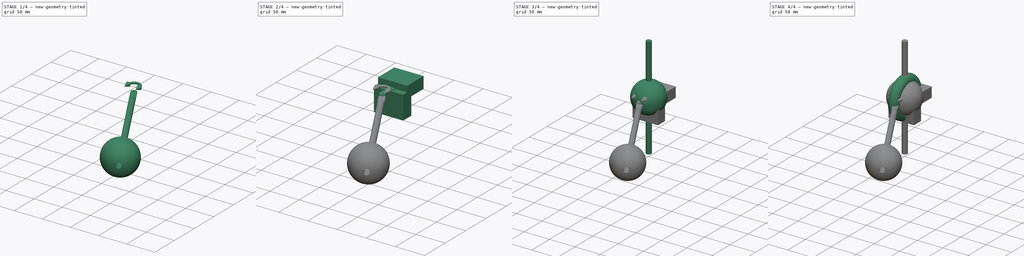
[diagram: build sequence overview — one tinted view per stage of 4, left to right]
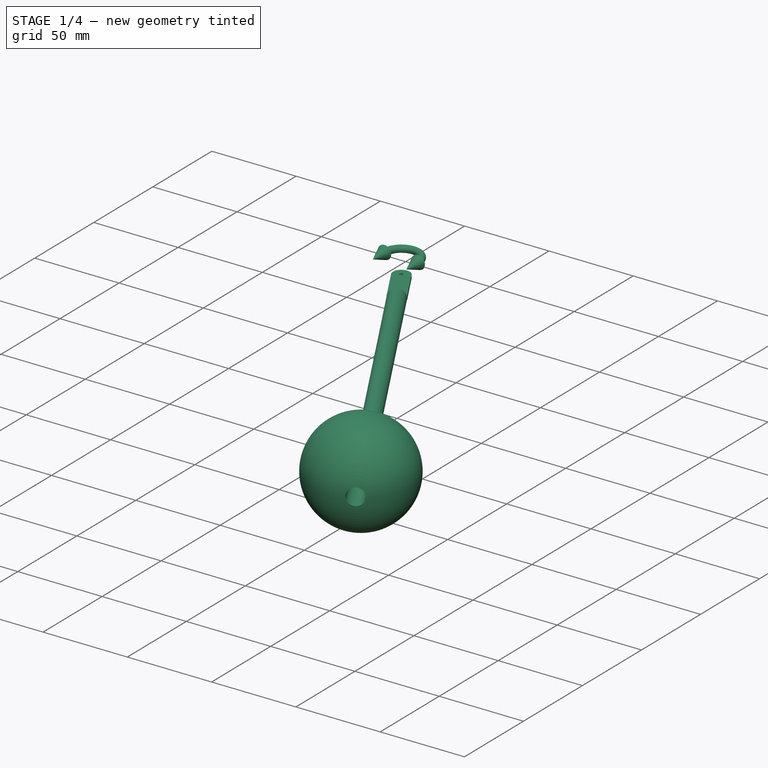
[diagram: stage 1 of 4 — iso view after this stage's code; geometry added in this stage tinted green]
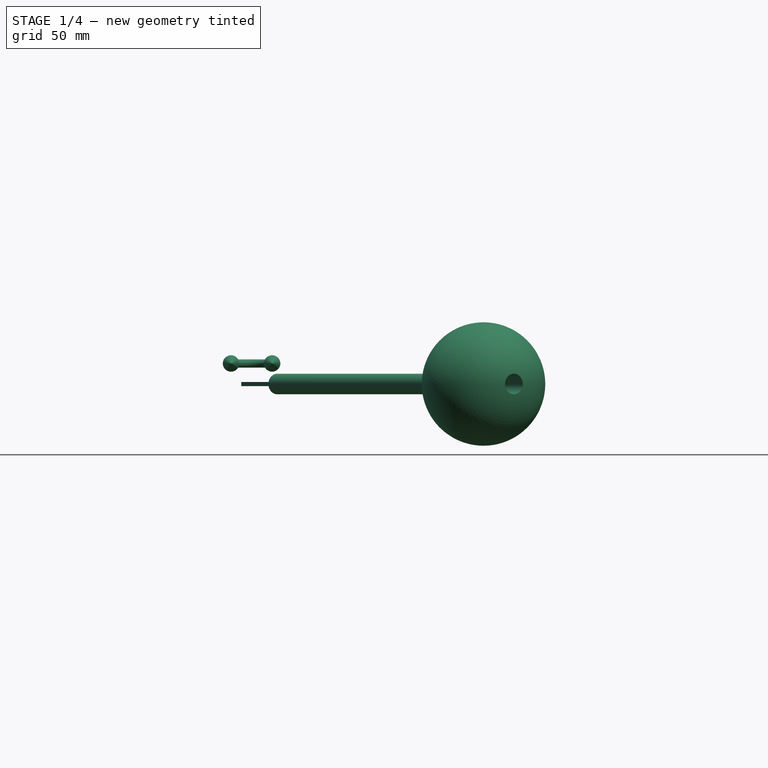
[diagram: stage 1 of 4 — front view after this stage's code; geometry added in this stage tinted green]
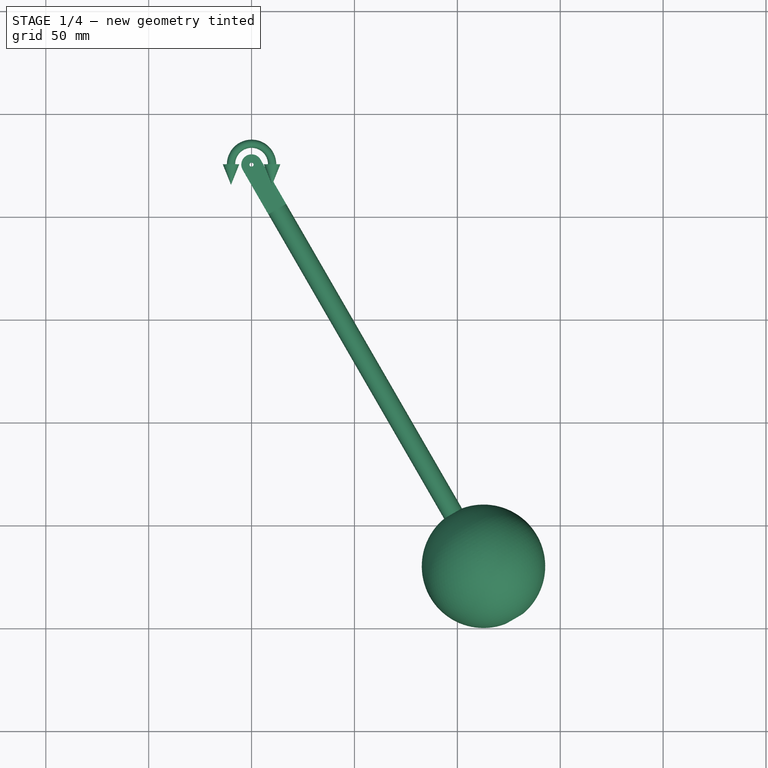
[diagram: stage 1 of 4 — top view after this stage's code; geometry added in this stage tinted green]
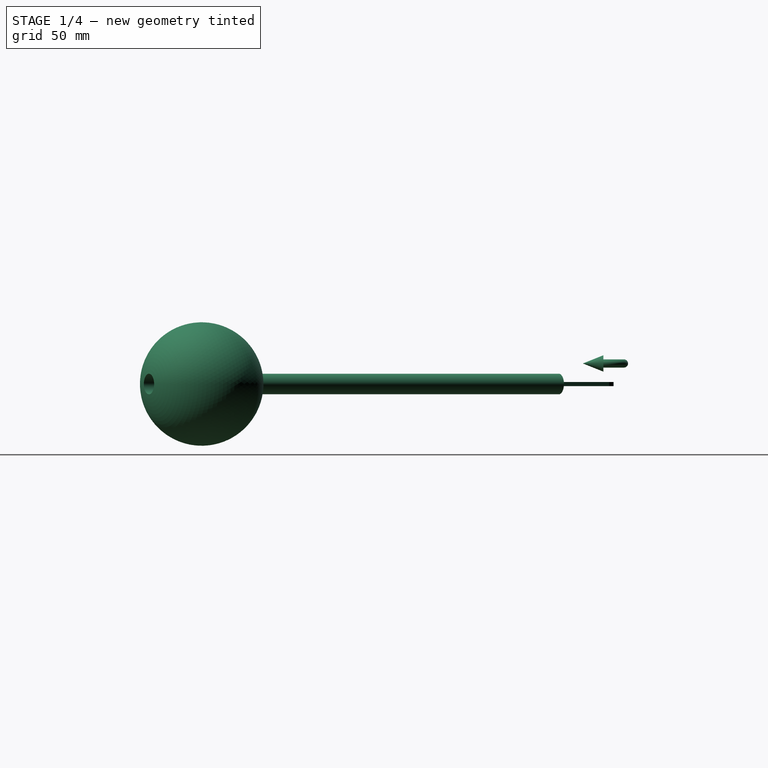
[diagram: stage 1 of 4 — right view after this stage's code; geometry added in this stage tinted green]
FCSTD DOCUMENT  (FreeCAD 0.20R29603 (Git))
Label: NikraDAPBeginnersTutorial3
License: All rights reserved
LicenseURL: http://en.wikipedia.org/wiki/All_rights_reserved
objects: PartDesign::CoordinateSystem×11, Sketcher::SketchObject×6, PartDesign::Body×6, Part::FeaturePython×6, App::Link×5, PartDesign::Pad×4, App::DocumentObjectGroup×3, PartDesign::Revolution×2, App::FeaturePython×1, App::Part×1, App::DocumentObjectGroupPython×1
note: 41 computed .brp shape members not serialized (recipe doc carries the construction recipe); baked Part::Feature solids carry a one-line shape summary decoded from their .brp

FEATURE [Part::FeaturePython] DapBody001  label="DapPendulum"  # WARN: FeaturePython — macro-defined, semantics opaque (R4)
  Mass = 0.971424
  ass4SolidsLabels = PendulumLug | PendulumRod | PendulumWeight
  ass4SolidsNames = PendulumLug | PendulumRod | PendulumWeight
  centreOfGravity = (112.71,-220.219,0)
  momentInertia = 38.1784
  movingBody = true
  phiDot = 0
  pointLabels = PendulumLug-{LugFace}-PendulumRod-{RodTop} | PendulumLug-{LugHole}-{LugHoleRot} | PendulumRod-{PendulumRod} | PendulumRod-{RodBot}-PendulumWeight-{WeightOrigin} | PendulumWeight-{PendulumWeight}
  pointLocals = (5) [(0,0,0),(0,25,1),(2.4869e-14,-100,8.43769e-15),(2.4869e-14,-200,3.06422e-14),(3.90799e-14,-200.42,2.79776e-14)]
  pointNames = PendulumLug-{LugFace}-PendulumRod-{RodTop} | PendulumLug-{LugHole}-{LugHoleRot} | PendulumRod-{PendulumRod} | PendulumRod-{RodBot}-PendulumWeight-{WeightOrigin} | PendulumWeight-{PendulumWeight}
  weightVector = (0,-9529.67,0)
  world = pos=(12.5,-46.6506,-2) rot=(0.258819,-0.965926,0;3.14159rad)
  worldDot = (0,0,0)
FEATURE [Part::FeaturePython] DapMaterial  # WARN: FeaturePython — macro-defined, semantics opaque (R4)
  kgm3ORgcm3 = false
  materialsDensityList = [1000,1000,1e-09,1e-09,8960]
  materialsNameList = Default | Default | None | None | Copper-Generic
  solidsNameList = Ground | GroundLug | PendulumLug | PendulumRod | PendulumWeight
FEATURE [Part::FeaturePython] DapJoint  # Assembly joint (typed FeaturePython)
  Coeff0 = 0
  Coeff1 = 0
  Coeff2 = 0
  Coeff3 = 0
  Coeff4 = 0
  Coeff5 = 0
  FunctType = -1
  JointType = 0 (Fixed)
  Radius = 1
  bodyHEADLabel = DapGround
  bodyHEADName = DapBody
  bodyHEADindex = 0
  bodyTAILLabel = DapPendulum
  bodyTAILName = DapBody001
  bodyTAILindex = 1
  d0 = (0,0,0)
  endDerivativeDriveFunc = 0
  endTimeDriveFunc = 0
  endValueDriveFunc = 0
  fixDof = false
  lengthLink = 1
  mConstraints = 2
  nMovBodies = 2
  phi0 = 0
  pointHEADLabel = GroundLug-{LugHole}-{LugHoleRot}
  pointHEADName = GroundLug-{LugHole}-{LugHoleRot}
  pointHEADindex = 1
  pointTAILLabel = PendulumLug-{LugHole}-{LugHoleRot}
  pointTAILName = PendulumLug-{LugHole}-{LugHoleRot}
  pointTAILindex = 1
  rowEnd = 2
  rowStart = 0
  startTimeDriveFunc = 0
  startValueDriveFunc = 0
  world0 = (0,0,0)
FEATURE [Part::FeaturePython] DapForce  # WARN: FeaturePython — macro-defined, semantics opaque (R4)
  DampingCoeff = 0
  Stiffness = 0
  Value0 = 0
  actuatorType = 0
  bodyHEADLabel = DapGround
  bodyHEADName = DapBody
  bodyHEADindex = 0
  bodyTAILLabel = DapGround
  bodyTAILName = DapBody
  bodyTAILindex = 0
  constForce = (0,0,0)
  constTorque = 0
  forceActuator = 0
  localForce = (0,0,0)
  pointHEADindex = 0
  pointTAILindex = 0
  torqueActuator = 0
  unitLocal = (0,0,0)
  unitWorld = (0,0,0)
  unitWorldDot = (0,0,0)
FEATURE [Part::FeaturePython] DapSolver  # WARN: FeaturePython — macro-defined, semantics opaque (R4)
  BodyCoG = (1) [(112.71,-220.219,0)]
  BodyNames = DapBody001
  DapResultsValid = true
  DeltaTime = 0.01
  Directory = <userpath>/Desktop
  EndTime = 10
  StartTime = 0
FEATURE [App::DocumentObjectGroupPython] DapContainer  # scripted group (container) (typed FeaturePython)
  Group = -> [DapBody,DapBody001,DapMaterial,DapJoint,DapForce,DapSolver]
  activeContainer = true
  gravityVector = (0,-9810,0)
  groundBodyLabel = DapBody
  groundBodyName = DapBody
  movementPlaneNormal = (0,0,1)
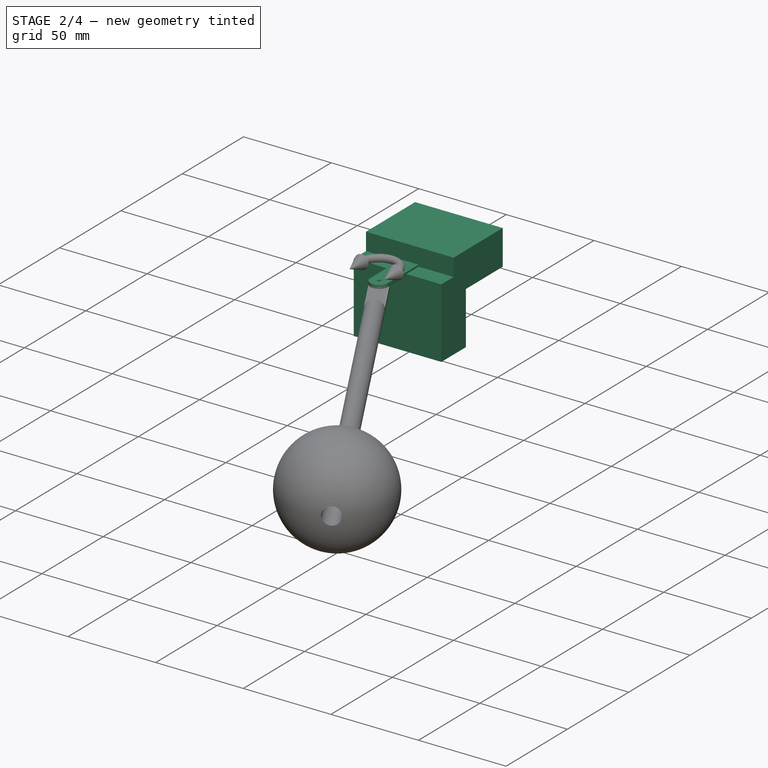
[diagram: stage 2 of 4 — iso view after this stage's code; geometry added in this stage tinted green]
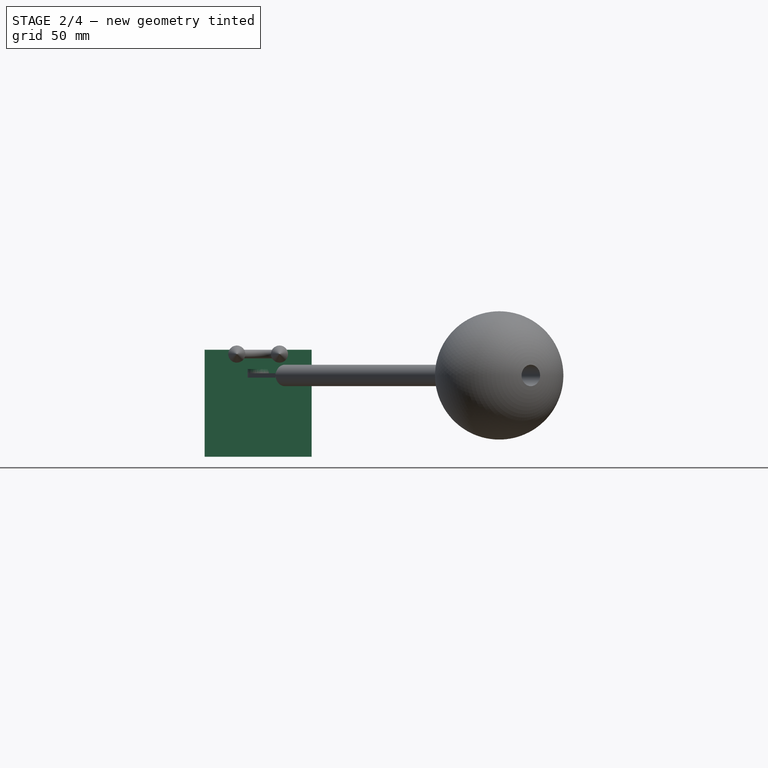
[diagram: stage 2 of 4 — front view after this stage's code; geometry added in this stage tinted green]
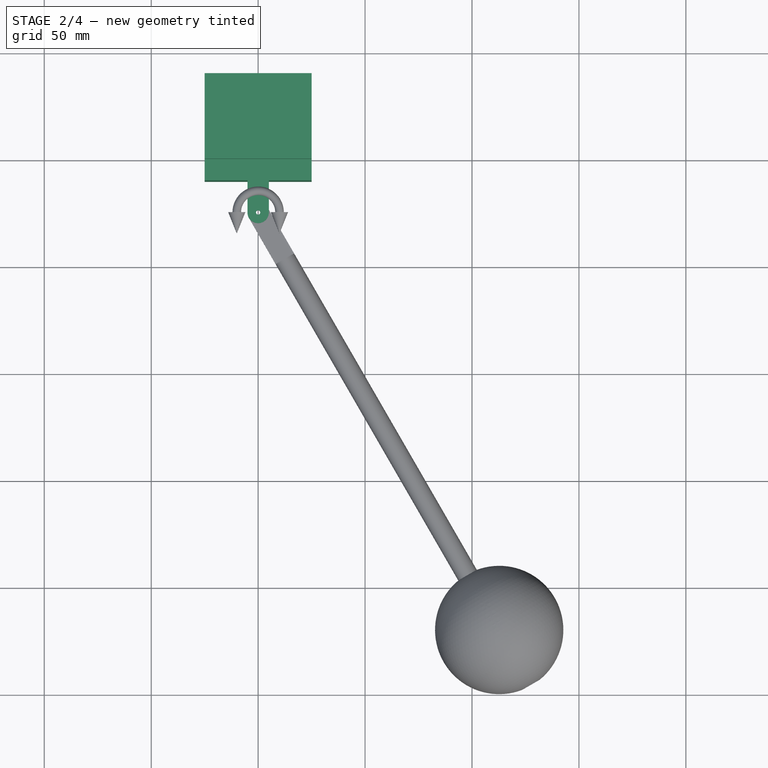
[diagram: stage 2 of 4 — top view after this stage's code; geometry added in this stage tinted green]
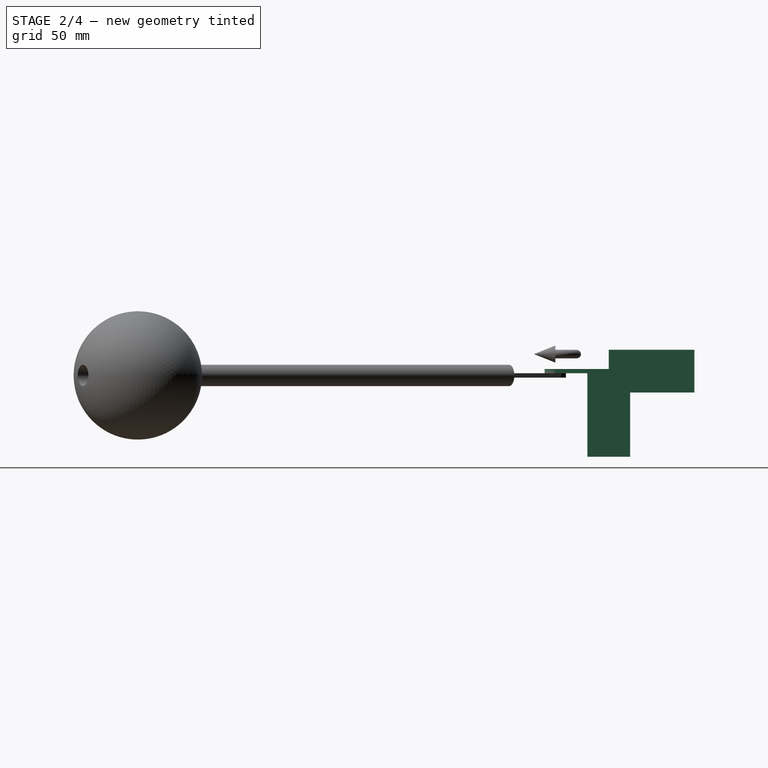
[diagram: stage 2 of 4 — right view after this stage's code; geometry added in this stage tinted green]
FEATURE [Sketcher::SketchObject] Sketch005
  FullyConstrained = true
  MapMode = 5
  Support = -> [XY_Plane005]
  sketch-geometry (4):
    g0: LineSegment StartX=-25 StartY=10 StartZ=0 EndX=25 EndY=10 EndZ=0
    g1: LineSegment StartX=25 StartY=10 StartZ=0 EndX=25 EndY=-10 EndZ=0
    g2: LineSegment StartX=25 StartY=-10 StartZ=0 EndX=-25 EndY=-10 EndZ=0
    g3: LineSegment StartX=-25 StartY=-10 StartZ=0 EndX=-25 EndY=10 EndZ=0
  constraints (11):
    c: Coincident(g0,g1)
    c: Coincident(g1,g2)
    c: Coincident(g2,g3)
    c: Coincident(g3,g0)
    c: Horizontal(g0)
    c: Horizontal(g2)
    c: Vertical(g1)
    c: Vertical(g3)
    c: DistanceY(g2,g0) = 20
    c: DistanceX(g0,g0) = 50
    c: Symmetric(g0,g1,g-1)
FEATURE [PartDesign::Pad] Pad003
  Direction = (0,0,1)
  Length = 40
  Length2 = 10
  Profile = -> Sketch005
  ReferenceAxis = -> Sketch005 [N_Axis]
  Reversed = true
  Type = 0
FEATURE [PartDesign::CoordinateSystem] RodTop
  AttacherType = Attacher::AttachEngine3D
  MapMode = 11
  Placement = pos=(0,0,100) rot=(0,0,1;1.5708rad)
  Support = -> [Pad]
FEATURE [PartDesign::CoordinateSystem] RodBot
  AttacherType = Attacher::AttachEngine3D
  MapMode = 11
  Placement = pos=(0,0,-100) rot=(0,0,1;1.5708rad)
  Support = -> [Pad]
FEATURE [PartDesign::Body] Body001  label="RodBody"
  Group = -> [Sketch001,Pad,RodTop,RodBot]
  Origin = -> Origin001
  Tip = -> Pad
FEATURE [PartDesign::CoordinateSystem] BobSurface
  AttacherType = Attacher::AttachEngine3D
  MapMode = 11
  Placement = pos=(10,-3.6e-15,0) rot=(0.707107,0,0.707107;3.14159rad)
  Support = -> [Revolution001]
FEATURE [PartDesign::Body] Body004  label="BobBody"
  Group = -> [Sketch004,Revolution001,BobSurface]
  Origin = -> Origin004
  Tip = -> Revolution001
FEATURE [PartDesign::CoordinateSystem] GroundFace
  AttacherType = Attacher::AttachEngine3D
  MapMode = 5
  Support = -> [Pad003]
FEATURE [PartDesign::Body] Body005  label="GroundBody"
  Group = -> [Sketch005,Pad003,GroundFace]
  Origin = -> Origin005
  Tip = -> Pad003
FEATURE [PartDesign::CoordinateSystem] LugFace
  AttacherType = Attacher::AttachEngine3D
  MapMode = 5
  Placement = pos=(0,0,0) rot=(1,0,0;1.5708rad)
  Support = -> [Pad004]
FEATURE [PartDesign::CoordinateSystem] LugHole
  AttacherType = Attacher::AttachEngine3D
  MapMode = 11
  Placement = pos=(0,25,1) rot=(0,0,1;1.5708rad)
  Support = -> [Pad004]
FEATURE [PartDesign::CoordinateSystem] LugHoleRot
  AttacherType = Attacher::AttachEngine3D
  AttachmentOffset = pos=(0,0,0) rot=(0,0,1;0.523599rad)
  MapMode = 11
  Placement = pos=(0,25,1) rot=(0,0,1;2.0944rad)
  Support = -> [Pad004]
FEATURE [PartDesign::Body] Body  label="LugBody"
  Group = -> [Sketch,Pad004,LugFace,LugHole,LugHoleRot]
  Origin = -> Origin
  Tip = -> Pad004
FEATURE [PartDesign::CoordinateSystem] MiniRodTop
  AttacherType = Attacher::AttachEngine3D
  MapMode = 11
  Placement = pos=(0,0,5) rot=(0,0,1;1.5708rad)
  Support = -> [Pad005]
FEATURE [PartDesign::CoordinateSystem] MiniRodBot
  AttacherType = Attacher::AttachEngine3D
  MapMode = 11
  Placement = pos=(0,0,-5) rot=(0,0,1;1.5708rad)
  Support = -> [Pad005]
FEATURE [PartDesign::Body] Body006  label="ShortRodBody"
  Group = -> [Sketch006,Pad005,MiniRodTop,MiniRodBot]
  Origin = -> Origin007
  Tip = -> Pad005
FEATURE [PartDesign::CoordinateSystem] WeightOrigin
  AttacherType = Attacher::AttachEngine3D
  AttachmentOffset = pos=(0,0,30) rot=(0,0,1;0rad)
  MapMode = 11
  Placement = pos=(0,0.419601,0) rot=(0.57735,0.57735,0.57735;4.18879rad)
  Support = -> [Revolution]
FEATURE [PartDesign::Body] Body007  label="Weight"
  Group = -> [Sketch007,Revolution,WeightOrigin]
  Origin = -> Origin009
  Tip = -> Revolution
FEATURE [App::DocumentObjectGroup] Parts
  Group = -> [Body001,Body004,Body005,Body,Body006,Body007]
FEATURE [PartDesign::CoordinateSystem] LCS_Origin
  AttacherType = Attacher::AttachEngine3D
  MapMode = 2
  Support = -> [X_Axis010]
FEATURE [App::DocumentObjectGroup] Constraints
FEATURE [App::FeaturePython] Variables  # WARN: FeaturePython — macro-defined, semantics opaque (R4)
  Type = App::PropertyContainer
FEATURE [App::DocumentObjectGroup] Configurations
FEATURE [App::Link] Ground
  AssemblyType = Part::Link
  AttachedBy = #GroundFace
  AttachedTo = Parent Assembly#LCS_Origin
  AttachmentOffset = pos=(0,0,0) rot=(1,0,0;1.5708rad)
  LinkPlacement = pos=(0,0,0) rot=(1,0,0;1.5708rad)
  LinkedObject = -> Body005
  Placement = pos=(0,0,0) rot=(1,0,0;1.5708rad)
  SolverId = Asm4EE
  expr: Placement = LCS_Origin.Placement * AttachmentOffset * GroundFace.Placement ^ -1
FEATURE [App::Link] GroundLug
  AssemblyType = Part::Link
  AttachedBy = #LugFace
  AttachedTo = Ground#GroundFace
  AttachmentOffset = pos=(0,0,0) rot=(1,0,0;3.14159rad)
  LinkPlacement = pos=(0,0,0) rot=(1,0,0;3.14159rad)
  LinkedObject = -> Body
  Placement = pos=(0,0,0) rot=(1,0,0;3.14159rad)
  SolverId = Asm4EE
  expr: Placement = Ground.Placement * GroundFace.Placement * AttachmentOffset * LugFace.Placement ^ -1
FEATURE [App::Link] PendulumLug
  AssemblyType = Part::Link
  AttachedBy = #LugHoleRot
  AttachedTo = GroundLug#LugHole
  AttachmentOffset = pos=(0,0,2) rot=(0,0,1;3.14159rad)
  LinkPlacement = pos=(12.5,-46.6506,-2) rot=(0.258819,-0.965926,0;3.14159rad)
  LinkedObject = -> Body
  Placement = pos=(12.5,-46.6506,-2) rot=(0.258819,-0.965926,0;3.14159rad)
  SolverId = Asm4EE
  expr: Placement = GroundLug.Placement * LugHole.Placement * AttachmentOffset * LugHoleRot.Placement ^ -1
FEATURE [App::Link] PendulumRod
  AssemblyType = Part::Link
  AttachedBy = #RodTop
  AttachedTo = PendulumLug#LugFace
  AttachmentOffset = pos=(0,0,0) rot=(0,-1,0;3.14159rad)
  LinkPlacement = pos=(62.5,-133.253,-2) rot=(0.447214,0.774597,0.447214;4.45971rad)
  LinkedObject = -> Body001
  Placement = pos=(62.5,-133.253,-2) rot=(0.447214,0.774597,0.447214;4.45971rad)
  SolverId = Asm4EE
  expr: Placement = PendulumLug.Placement * LugFace.Placement * AttachmentOffset * RodTop.Placement ^ -1
FEATURE [App::Link] PendulumWeight
  AssemblyType = Part::Link
  AttachedBy = #WeightOrigin
  AttachedTo = PendulumRod#RodBot
  LinkPlacement = pos=(112.71,-220.219,-2) rot=(0.250563,-0.935113,-0.250563;4.64535rad)
  LinkedObject = -> Body007
  Placement = pos=(112.71,-220.219,-2) rot=(0.250563,-0.935113,-0.250563;4.64535rad)
  SolverId = Asm4EE
  expr: Placement = PendulumRod.Placement * RodBot.Placement * AttachmentOffset * WeightOrigin.Placement ^ -1
FEATURE [App::Part] Model
  AssemblyType = Part::Link
  Group = -> [LCS_Origin,Constraints,Variables,Configurations,Ground,GroundLug,PendulumLug,PendulumRod,PendulumWeight]
  Origin = -> Origin010
  Type = Assembly
FEATURE [Part::FeaturePython] DapBody  label="DapGround"  # WARN: FeaturePython — macro-defined, semantics opaque (R4)
  Mass = 0.0405723
  ass4SolidsLabels = Ground | GroundLug
  ass4SolidsNames = Ground | GroundLug
  centreOfGravity = (5.42e-14,19.5152,0)
  momentInertia = 1.21315
  movingBody = false
  phiDot = 0
  pointLabels = Ground-{GroundFace}-GroundLug-{GroundLug}-{LugFace} | GroundLug-{LugHole}-{LugHoleRot}
  pointLocals = (2) [(0,0,0),(0,-1,25)]
  pointNames = Ground-{GroundFace}-GroundLug-{GroundLug}-{LugFace} | GroundLug-{LugHole}-{LugHoleRot}
  weightVector = (0,-398.014,0)
  world = pos=(0,0,0) rot=(1,0,0;1.5708rad)
  worldDot = (0,0,0)
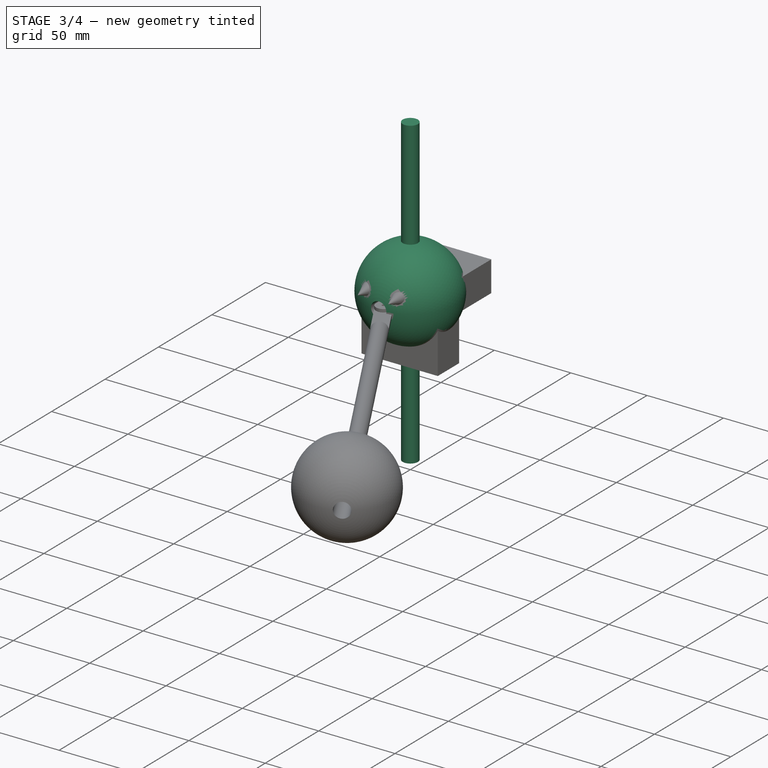
[diagram: stage 3 of 4 — iso view after this stage's code; geometry added in this stage tinted green]
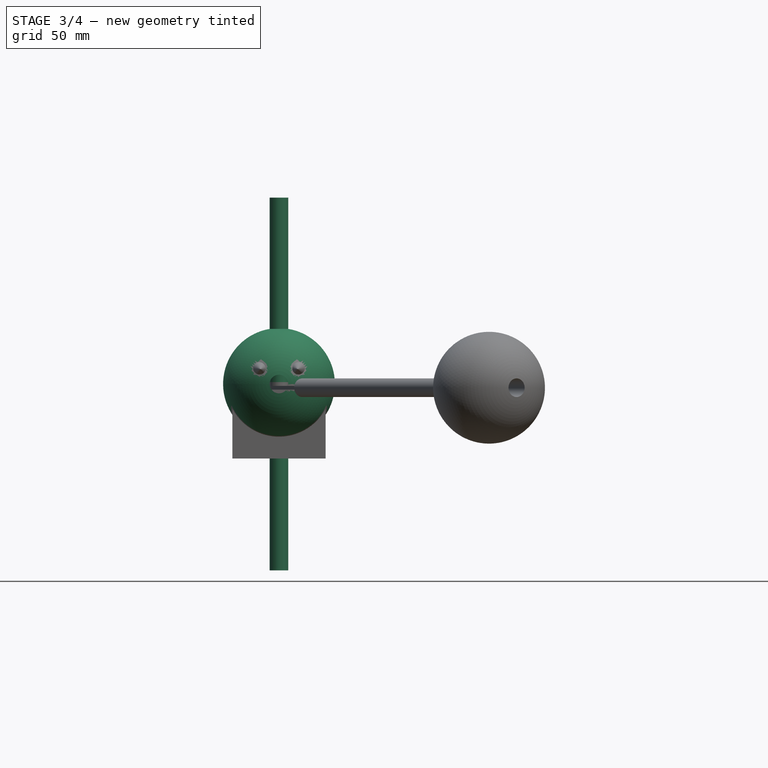
[diagram: stage 3 of 4 — front view after this stage's code; geometry added in this stage tinted green]
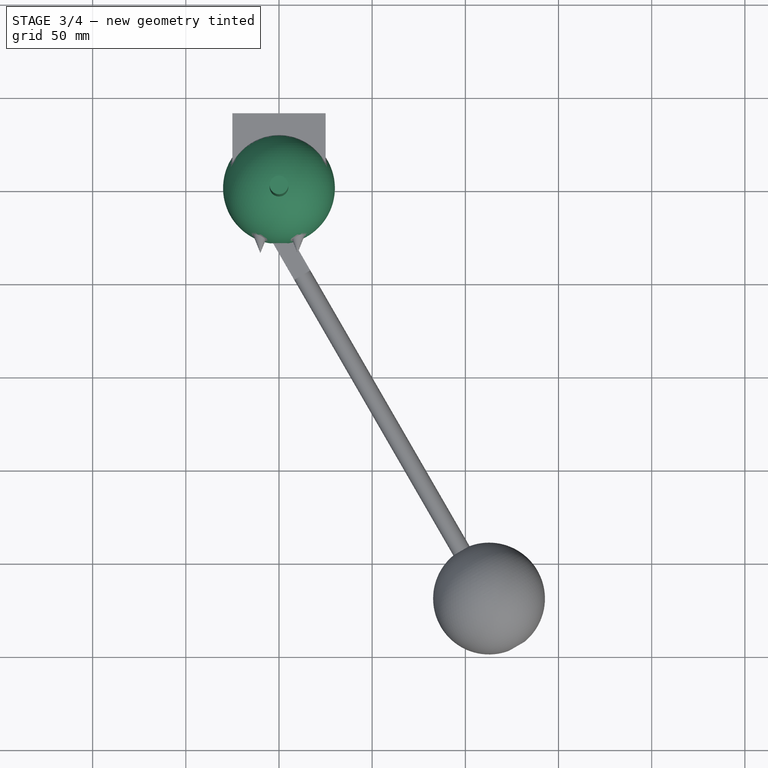
[diagram: stage 3 of 4 — top view after this stage's code; geometry added in this stage tinted green]
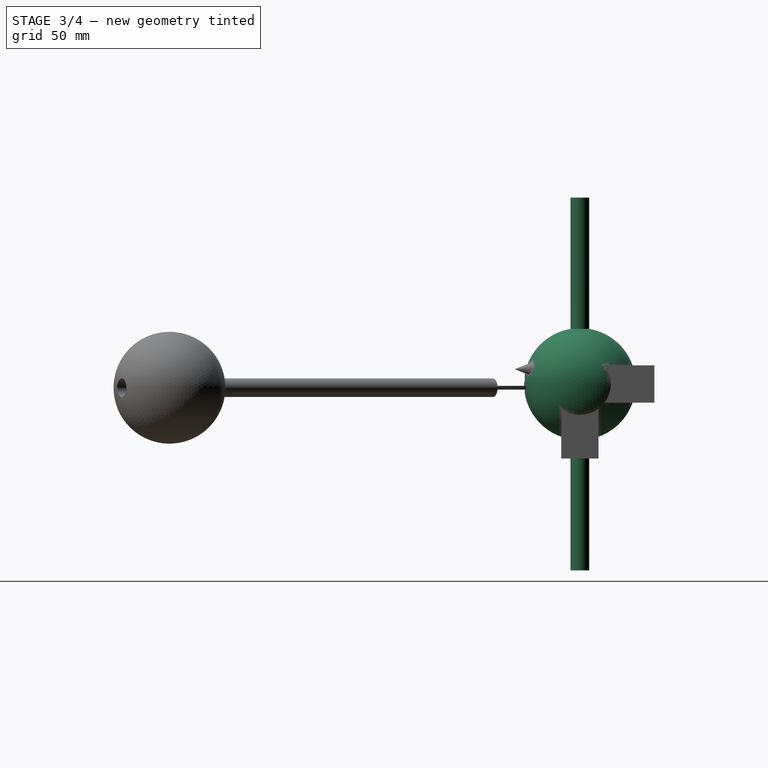
[diagram: stage 3 of 4 — right view after this stage's code; geometry added in this stage tinted green]
FEATURE [Sketcher::SketchObject] Sketch001
  FullyConstrained = true
  MapMode = 5
  Support = -> [XY_Plane001]
  sketch-geometry (1):
    g0: Circle CenterX=0 CenterY=0 CenterZ=0 NormalX=0 NormalY=0 NormalZ=1 AngleXU=0 Radius=5
  constraints (2):
    c: Coincident(g0,g-1)
    c: Radius(g0) = 5
FEATURE [PartDesign::Pad] Pad
  Direction = (0,0,1)
  Length = 200
  Length2 = 10
  Midplane = true
  Profile = -> Sketch001
  ReferenceAxis = -> Sketch001 [N_Axis]
  Type = 0
FEATURE [Sketcher::SketchObject] Sketch
  FullyConstrained = true
  MapMode = 5
  Support = -> [XY_Plane]
  sketch-geometry (5):
    g0: LineSegment StartX=-5 StartY=0 StartZ=0 EndX=-5 EndY=25 EndZ=0
    g1: LineSegment StartX=5 StartY=25 StartZ=0 EndX=5 EndY=0 EndZ=0
    g2: LineSegment StartX=5 StartY=0 StartZ=0 EndX=-5 EndY=0 EndZ=0
    g3: Circle CenterX=0 CenterY=25 CenterZ=0 NormalX=0 NormalY=0 NormalZ=1 AngleXU=0 Radius=1
    g4: ArcOfCircle CenterX=0 CenterY=25 CenterZ=0 NormalX=0 NormalY=0 NormalZ=1 AngleXU=0 Radius=5 StartAngle=5e-16 EndAngle=3.1416
  constraints (13):
    c: PointOnObject(g0,g-1)
    c: Vertical(g0)
    c: Coincident(g1,g2)
    c: Coincident(g2,g0)
    c: Vertical(g1)
    c: Symmetric(g0,g1,g-1)
    c: Radius(g3) = 1
    c: Distance(g1) = 25
    c: Coincident(g4,g3)
    c: Coincident(g4,g0)
    c: Radius(g4) = 5
    c: Tangent(g4,g1) = 1.5708
    c: PointOnObject(g3,g-2)
FEATURE [PartDesign::Pad] Pad004
  Direction = (0,0,1)
  Length = 2
  Length2 = 10
  Midplane = true
  Profile = -> Sketch
  ReferenceAxis = -> Sketch [N_Axis]
  Type = 0
FEATURE [Sketcher::SketchObject] Sketch007
  FullyConstrained = true
  MapMode = 5
  Support = -> [XY_Plane009]
  sketch-geometry (2):
    g0: ArcOfCircle CenterX=0 CenterY=0 CenterZ=0 NormalX=0 NormalY=0 NormalZ=1 AngleXU=0 Radius=30 StartAngle=1.73824 EndAngle=4.54494
    g1: LineSegment StartX=-5 StartY=29.5804 StartZ=0 EndX=-5 EndY=-29.5804 EndZ=0
  constraints (6):
    c: Vertical(g1)
    c: Coincident(g0,g1)
    c: Coincident(g0,g1)
    c: Radius(g0) = 30
    c: Coincident(g0,g-1)
    c: DistanceX(g0,g0) = 5
FEATURE [PartDesign::Revolution] Revolution
  Angle = 360
  Axis = (0,1,0)
  Base = (0,0,0)
  Profile = -> Sketch007
  ReferenceAxis = -> Sketch007 [V_Axis]
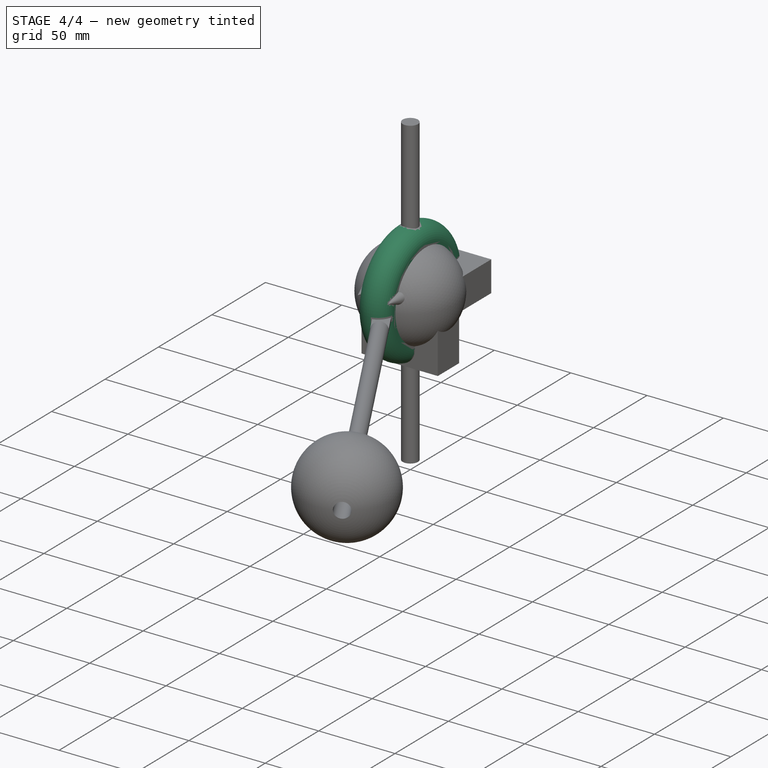
[diagram: stage 4 of 4 — iso view after this stage's code; geometry added in this stage tinted green]
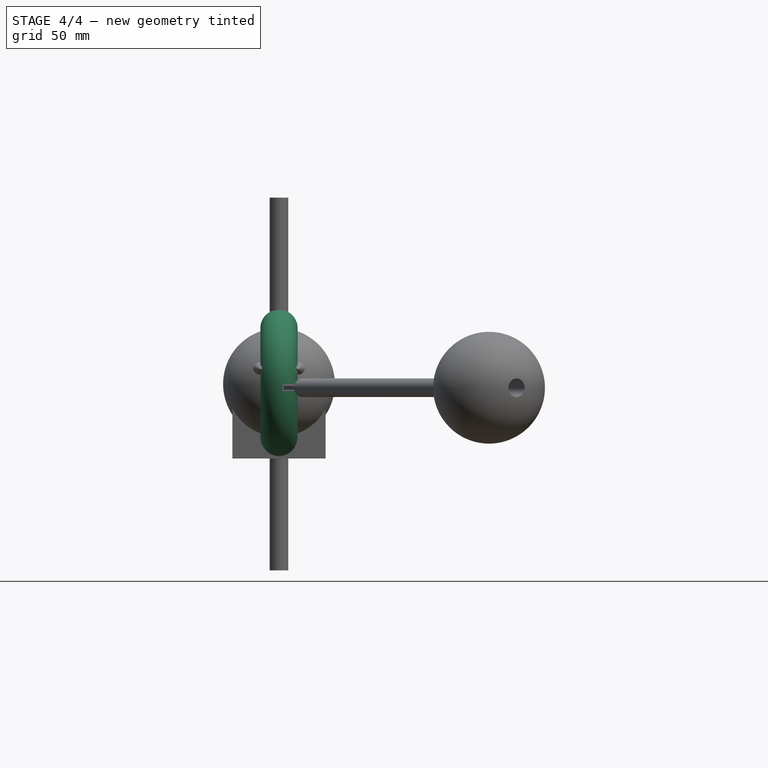
[diagram: stage 4 of 4 — front view after this stage's code; geometry added in this stage tinted green]
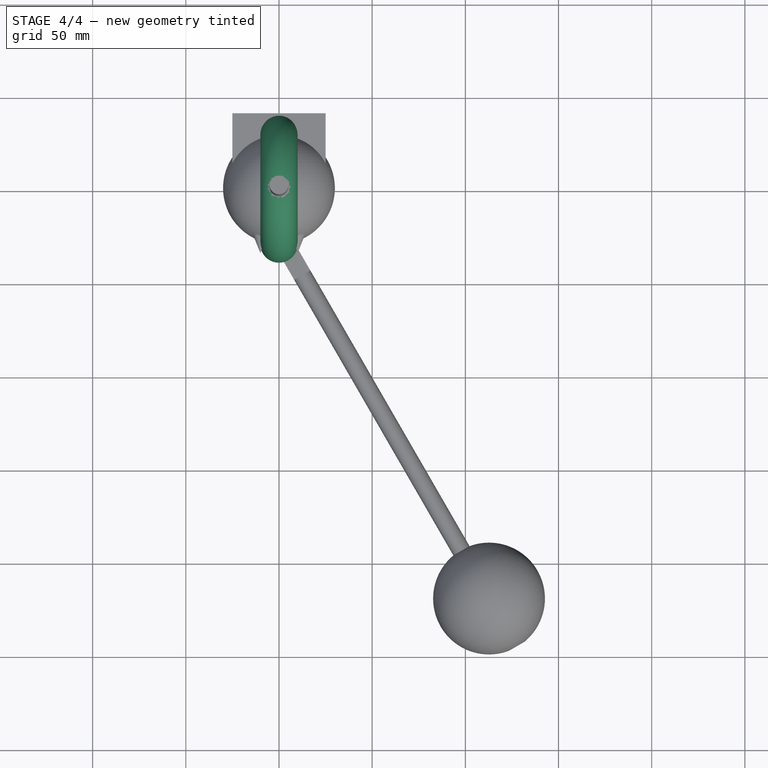
[diagram: stage 4 of 4 — top view after this stage's code; geometry added in this stage tinted green]
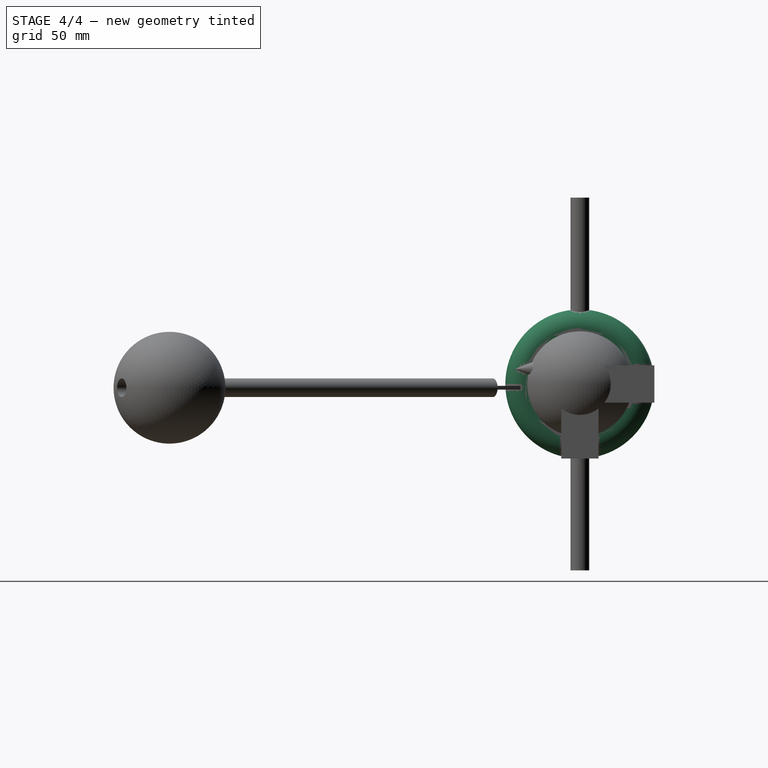
[diagram: stage 4 of 4 — right view after this stage's code; geometry added in this stage tinted green]
FEATURE [Sketcher::SketchObject] Sketch004
  FullyConstrained = true
  MapMode = 5
  Support = -> [XY_Plane004]
  sketch-geometry (4):
    g0: LineSegment StartX=-10 StartY=0 StartZ=0 EndX=-10 EndY=30 EndZ=0
    g1: ArcOfCircle CenterX=0 CenterY=30 CenterZ=0 NormalX=0 NormalY=0 NormalZ=1 AngleXU=0 Radius=10 StartAngle=2e-16 EndAngle=3.14159
    g2: LineSegment StartX=10 StartY=30 StartZ=0 EndX=10 EndY=0 EndZ=0
    g3: LineSegment StartX=10 StartY=0 StartZ=0 EndX=-10 EndY=0 EndZ=0
  constraints (11):
    c: PointOnObject(g0,g-1)
    c: Vertical(g0)
    c: Tangent(g0,g1) = 1.5708
    c: Tangent(g1,g2) = 1.5708
    c: Coincident(g2,g3)
    c: Coincident(g3,g0)
    c: Vertical(g2)
    c: PointOnObject(g1,g-2)
    c: Diameter(g1) = 20
    c: Distance(g0) = 30
    c: PointOnObject(g2,g-1)
FEATURE [PartDesign::Revolution] Revolution001
  Angle = 360
  Axis = (1,0,0)
  Base = (0,0,0)
  Profile = -> Sketch004
  ReferenceAxis = -> Sketch004 [H_Axis]
FEATURE [Sketcher::SketchObject] Sketch006
  FullyConstrained = true
  MapMode = 5
  Support = -> [XY_Plane007]
  sketch-geometry (1):
    g0: Circle CenterX=0 CenterY=0 CenterZ=0 NormalX=0 NormalY=0 NormalZ=1 AngleXU=0 Radius=5
  constraints (2):
    c: Coincident(g0,g-1)
    c: Radius(g0) = 5
FEATURE [PartDesign::Pad] Pad005
  Direction = (0,0,1)
  Length = 10
  Length2 = 10
  Midplane = true
  Profile = -> Sketch006
  ReferenceAxis = -> Sketch006 [N_Axis]
  Type = 0
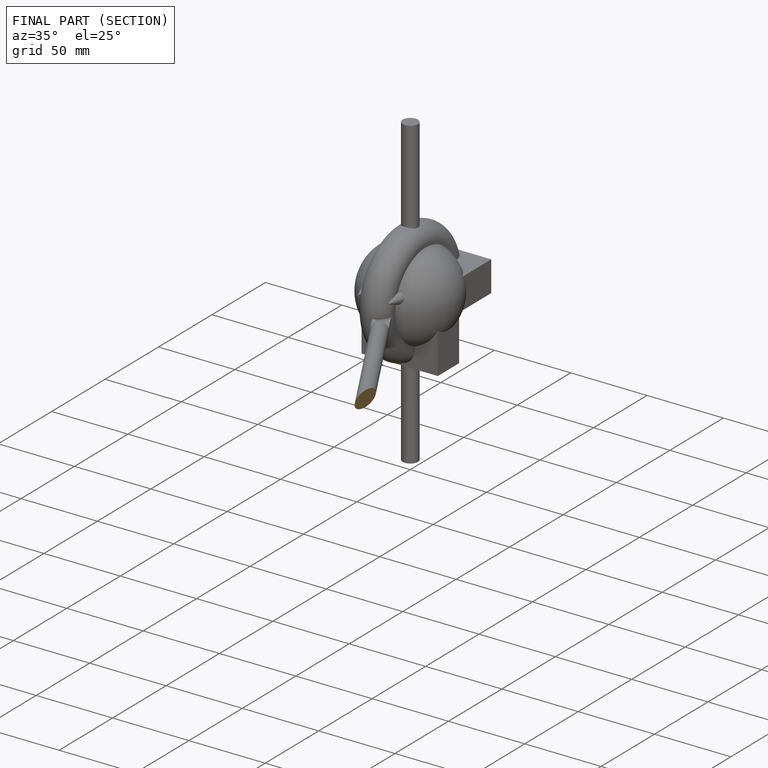
[diagram: finished part — half-section view (interior)]
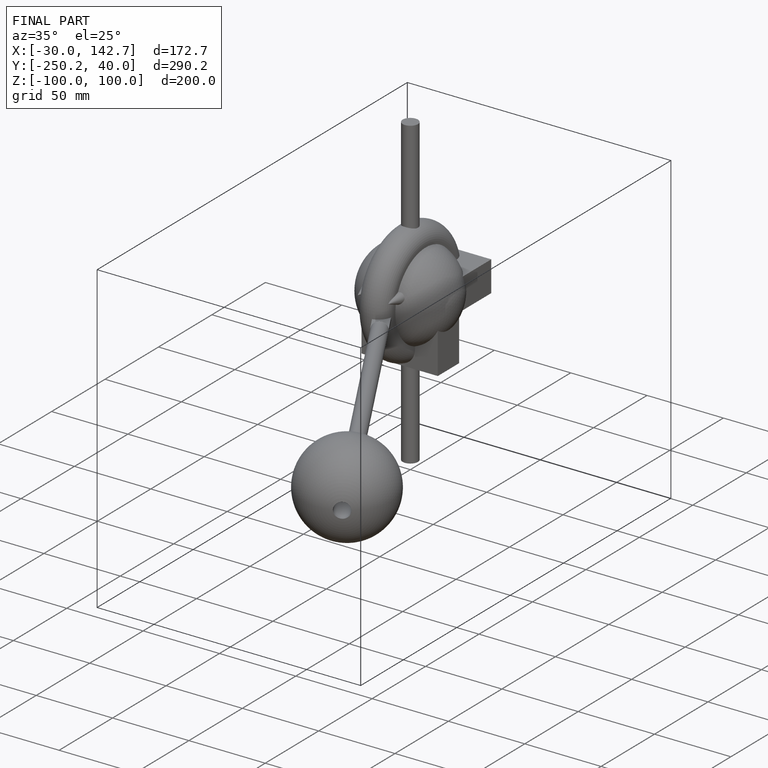
[diagram: finished part — iso view with bounding-box wireframe]
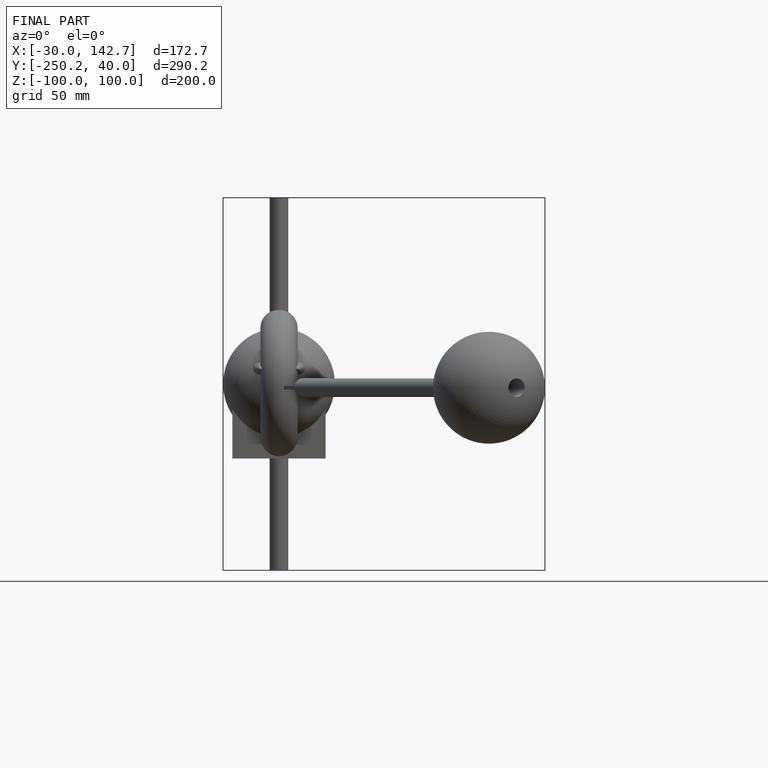
[diagram: finished part — front view with bounding-box wireframe]
